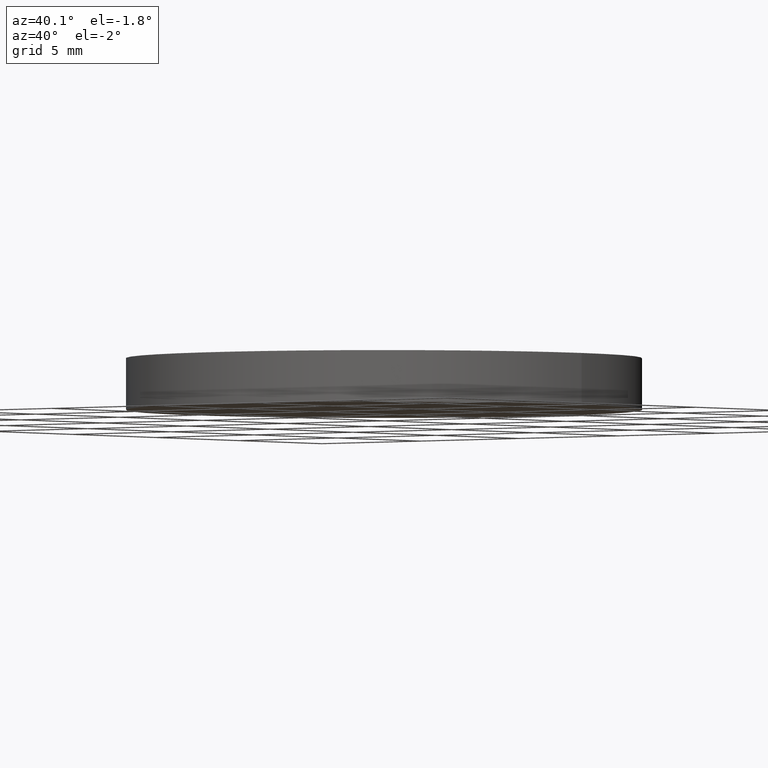
[diagram: clean part render]
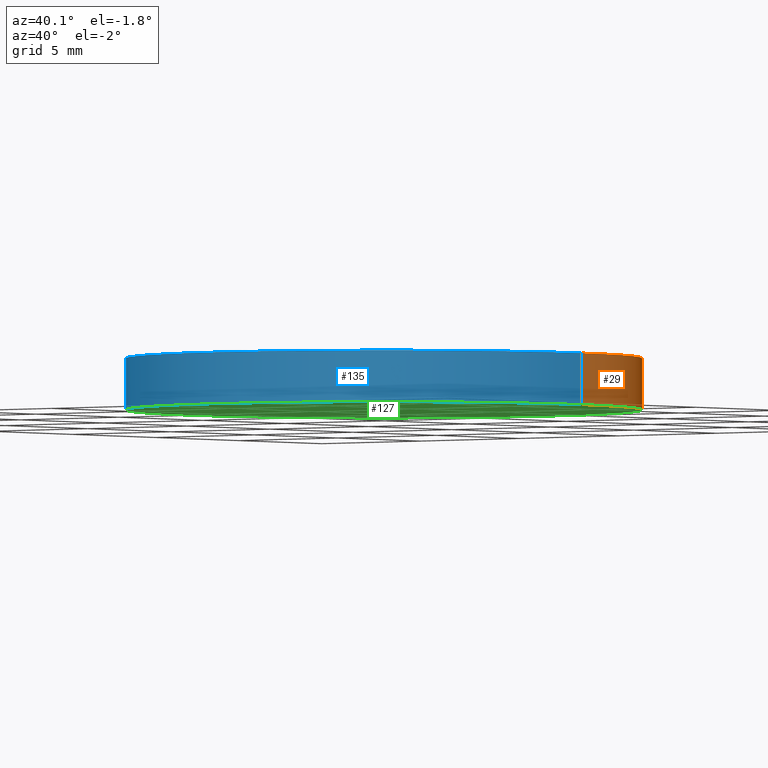
[diagram: same view with three faces highlighted in distinct colors, each labeled with its STEP entity id]
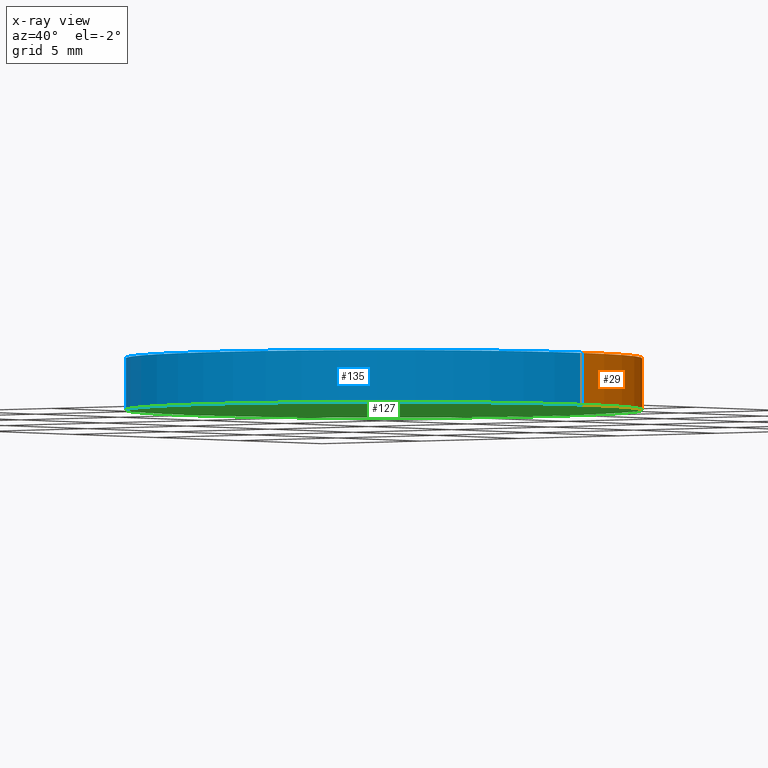
[diagram: x-ray of the same camera — body ghosted, the three highlighted faces saturated]
A machine part, auxiliary view with three faces highlighted in distinct colors.
The next image is the same camera in x-ray (body ghosted, the three faces saturated) — at least one of them is partly hidden behind the body in this view.
Their STEP definitions:

[orange] entity #29 — the highlighted cylindrical surface (partial cylindrical patch) has radius 10 mm, axis along (-0, -0, -1).
#1 = DIRECTION ( 'NONE',  ( 1.000000000000000000, 0.0000000000000000000, 0.0000000000000000000 ) ) ;
#2 = ORIENTED_EDGE ( 'NONE', *, *, #134, .T. ) ;
#3 = DIRECTION ( 'NONE',  ( 0.0000000000000000000, 0.0000000000000000000, 1.000000000000000000 ) ) ;
#5 = CARTESIAN_POINT ( 'NONE',  ( 0.0000000000000000000, 0.0000000000000000000, 2.000000000000000000 ) ) ;
#8 = CARTESIAN_POINT ( 'NONE',  ( 10.00000000000000000, 1.224646799147353300E-015, 0.0000000000000000000 ) ) ;
#9 = CYLINDRICAL_SURFACE ( 'NONE', #99, 10.00000000000000000 ) ;
#11 = LINE ( 'NONE', #81, #19 ) ;
#12 = ORIENTED_EDGE ( 'NONE', *, *, #51, .T. ) ;
#13 = DIRECTION ( 'NONE',  ( -1.000000000000000000, 0.0000000000000000000, 0.0000000000000000000 ) ) ;
#15 = AXIS2_PLACEMENT_3D ( 'NONE', #33, #39, #40 ) ;
#17 = VERTEX_POINT ( 'NONE', #77 ) ;
#19 = VECTOR ( 'NONE', #122, 1000.000000000000000 ) ;
#21 = CARTESIAN_POINT ( 'NONE',  ( -10.00000000000000000, 0.0000000000000000000, 2.000000000000000000 ) ) ;
#28 = CARTESIAN_POINT ( 'NONE',  ( 10.00000000000000000, 1.224646799147353300E-015, 2.000000000000000000 ) ) ;
#29 = ADVANCED_FACE ( 'NONE', ( #117 ), #9, .T. ) ;
#33 = CARTESIAN_POINT ( 'NONE',  ( 0.0000000000000000000, 0.0000000000000000000, 0.0000000000000000000 ) ) ;
#38 = VECTOR ( 'NONE', #74, 1000.000000000000000 ) ;
#39 = DIRECTION ( 'NONE',  ( 0.0000000000000000000, 0.0000000000000000000, 1.000000000000000000 ) ) ;
#40 = DIRECTION ( 'NONE',  ( 1.000000000000000000, 0.0000000000000000000, 0.0000000000000000000 ) ) ;
#41 = ORIENTED_EDGE ( 'NONE', *, *, #101, .F. ) ;
#42 = EDGE_CURVE ( 'NONE', #102, #17, #11, .T. ) ;
#46 = VERTEX_POINT ( 'NONE', #8 ) ;
#49 = CIRCLE ( 'NONE', #15, 10.00000000000000000 ) ;
#51 = EDGE_CURVE ( 'NONE', #46, #17, #49, .T. ) ;
#64 = EDGE_LOOP ( 'NONE', ( #41, #2, #12, #133 ) ) ;
#72 = CARTESIAN_POINT ( 'NONE',  ( 10.00000000000000000, 1.224646799147353300E-015, 2.000000000000000000 ) ) ;
#74 = DIRECTION ( 'NONE',  ( -0.0000000000000000000, -0.0000000000000000000, -1.000000000000000000 ) ) ;
#77 = CARTESIAN_POINT ( 'NONE',  ( -10.00000000000000000, 0.0000000000000000000, 0.0000000000000000000 ) ) ;
#80 = DIRECTION ( 'NONE',  ( -0.0000000000000000000, -0.0000000000000000000, -1.000000000000000000 ) ) ;
#81 = CARTESIAN_POINT ( 'NONE',  ( -10.00000000000000000, 0.0000000000000000000, 2.000000000000000000 ) ) ;
#83 = CIRCLE ( 'NONE', #114, 10.00000000000000000 ) ;
#96 = LINE ( 'NONE', #72, #38 ) ;
#98 = CARTESIAN_POINT ( 'NONE',  ( 0.0000000000000000000, 0.0000000000000000000, 2.000000000000000000 ) ) ;
#99 = AXIS2_PLACEMENT_3D ( 'NONE', #98, #80, #13 ) ;
#101 = EDGE_CURVE ( 'NONE', #109, #102, #83, .T. ) ;
#102 = VERTEX_POINT ( 'NONE', #21 ) ;
#109 = VERTEX_POINT ( 'NONE', #28 ) ;
#114 = AXIS2_PLACEMENT_3D ( 'NONE', #5, #3, #1 ) ;
#117 = FACE_OUTER_BOUND ( 'NONE', #64, .T. ) ;
#122 = DIRECTION ( 'NONE',  ( -0.0000000000000000000, -0.0000000000000000000, -1.000000000000000000 ) ) ;
#133 = ORIENTED_EDGE ( 'NONE', *, *, #42, .F. ) ;
#134 = EDGE_CURVE ( 'NONE', #109, #46, #96, .T. ) ;

[blue] entity #135 — the highlighted cylindrical surface (partial cylindrical patch) has radius 10 mm, axis along (-0, -0, -1).
#7 = CIRCLE ( 'NONE', #31, 10.00000000000000000 ) ;
#8 = CARTESIAN_POINT ( 'NONE',  ( 10.00000000000000000, 1.224646799147353300E-015, 0.0000000000000000000 ) ) ;
#11 = LINE ( 'NONE', #81, #19 ) ;
#17 = VERTEX_POINT ( 'NONE', #77 ) ;
#19 = VECTOR ( 'NONE', #122, 1000.000000000000000 ) ;
#21 = CARTESIAN_POINT ( 'NONE',  ( -10.00000000000000000, 0.0000000000000000000, 2.000000000000000000 ) ) ;
#24 = CIRCLE ( 'NONE', #131, 10.00000000000000000 ) ;
#25 = DIRECTION ( 'NONE',  ( 0.0000000000000000000, 0.0000000000000000000, 1.000000000000000000 ) ) ;
#27 = DIRECTION ( 'NONE',  ( 1.000000000000000000, 0.0000000000000000000, 0.0000000000000000000 ) ) ;
#28 = CARTESIAN_POINT ( 'NONE',  ( 10.00000000000000000, 1.224646799147353300E-015, 2.000000000000000000 ) ) ;
#31 = AXIS2_PLACEMENT_3D ( 'NONE', #45, #25, #27 ) ;
#36 = AXIS2_PLACEMENT_3D ( 'NONE', #87, #60, #93 ) ;
#38 = VECTOR ( 'NONE', #74, 1000.000000000000000 ) ;
#42 = EDGE_CURVE ( 'NONE', #102, #17, #11, .T. ) ;
#44 = EDGE_CURVE ( 'NONE', #102, #109, #7, .T. ) ;
#45 = CARTESIAN_POINT ( 'NONE',  ( 0.0000000000000000000, 0.0000000000000000000, 2.000000000000000000 ) ) ;
#46 = VERTEX_POINT ( 'NONE', #8 ) ;
#48 = CARTESIAN_POINT ( 'NONE',  ( 0.0000000000000000000, 0.0000000000000000000, 0.0000000000000000000 ) ) ;
#60 = DIRECTION ( 'NONE',  ( -0.0000000000000000000, -0.0000000000000000000, -1.000000000000000000 ) ) ;
#66 = FACE_OUTER_BOUND ( 'NONE', #138, .T. ) ;
#68 = ORIENTED_EDGE ( 'NONE', *, *, #42, .T. ) ;
#72 = CARTESIAN_POINT ( 'NONE',  ( 10.00000000000000000, 1.224646799147353300E-015, 2.000000000000000000 ) ) ;
#74 = DIRECTION ( 'NONE',  ( -0.0000000000000000000, -0.0000000000000000000, -1.000000000000000000 ) ) ;
#77 = CARTESIAN_POINT ( 'NONE',  ( -10.00000000000000000, 0.0000000000000000000, 0.0000000000000000000 ) ) ;
#81 = CARTESIAN_POINT ( 'NONE',  ( -10.00000000000000000, 0.0000000000000000000, 2.000000000000000000 ) ) ;
#86 = CYLINDRICAL_SURFACE ( 'NONE', #36, 10.00000000000000000 ) ;
#87 = CARTESIAN_POINT ( 'NONE',  ( 0.0000000000000000000, 0.0000000000000000000, 2.000000000000000000 ) ) ;
#93 = DIRECTION ( 'NONE',  ( -1.000000000000000000, 0.0000000000000000000, 0.0000000000000000000 ) ) ;
#96 = LINE ( 'NONE', #72, #38 ) ;
#102 = VERTEX_POINT ( 'NONE', #21 ) ;
#109 = VERTEX_POINT ( 'NONE', #28 ) ;
#111 = DIRECTION ( 'NONE',  ( 0.0000000000000000000, 0.0000000000000000000, 1.000000000000000000 ) ) ;
#113 = DIRECTION ( 'NONE',  ( 1.000000000000000000, 0.0000000000000000000, 0.0000000000000000000 ) ) ;
#115 = ORIENTED_EDGE ( 'NONE', *, *, #123, .T. ) ;
#122 = DIRECTION ( 'NONE',  ( -0.0000000000000000000, -0.0000000000000000000, -1.000000000000000000 ) ) ;
#123 = EDGE_CURVE ( 'NONE', #17, #46, #24, .T. ) ;
#128 = ORIENTED_EDGE ( 'NONE', *, *, #44, .F. ) ;
#130 = ORIENTED_EDGE ( 'NONE', *, *, #134, .F. ) ;
#131 = AXIS2_PLACEMENT_3D ( 'NONE', #48, #111, #113 ) ;
#134 = EDGE_CURVE ( 'NONE', #109, #46, #96, .T. ) ;
#135 = ADVANCED_FACE ( 'NONE', ( #66 ), #86, .T. ) ;
#138 = EDGE_LOOP ( 'NONE', ( #130, #128, #68, #115 ) ) ;

[green] entity #127 — the highlighted planar face has unit normal (0, 0, 1).
#8 = CARTESIAN_POINT ( 'NONE',  ( 10.00000000000000000, 1.224646799147353300E-015, 0.0000000000000000000 ) ) ;
#15 = AXIS2_PLACEMENT_3D ( 'NONE', #33, #39, #40 ) ;
#17 = VERTEX_POINT ( 'NONE', #77 ) ;
#18 = AXIS2_PLACEMENT_3D ( 'NONE', #63, #106, #124 ) ;
#24 = CIRCLE ( 'NONE', #131, 10.00000000000000000 ) ;
#33 = CARTESIAN_POINT ( 'NONE',  ( 0.0000000000000000000, 0.0000000000000000000, 0.0000000000000000000 ) ) ;
#35 = ORIENTED_EDGE ( 'NONE', *, *, #51, .F. ) ;
#39 = DIRECTION ( 'NONE',  ( 0.0000000000000000000, 0.0000000000000000000, 1.000000000000000000 ) ) ;
#40 = DIRECTION ( 'NONE',  ( 1.000000000000000000, 0.0000000000000000000, 0.0000000000000000000 ) ) ;
#46 = VERTEX_POINT ( 'NONE', #8 ) ;
#48 = CARTESIAN_POINT ( 'NONE',  ( 0.0000000000000000000, 0.0000000000000000000, 0.0000000000000000000 ) ) ;
#49 = CIRCLE ( 'NONE', #15, 10.00000000000000000 ) ;
#51 = EDGE_CURVE ( 'NONE', #46, #17, #49, .T. ) ;
#53 = FACE_OUTER_BOUND ( 'NONE', #90, .T. ) ;
#56 = PLANE ( 'NONE',  #18 ) ;
#59 = ORIENTED_EDGE ( 'NONE', *, *, #123, .F. ) ;
#63 = CARTESIAN_POINT ( 'NONE',  ( 0.0000000000000000000, 0.0000000000000000000, 0.0000000000000000000 ) ) ;
#77 = CARTESIAN_POINT ( 'NONE',  ( -10.00000000000000000, 0.0000000000000000000, 0.0000000000000000000 ) ) ;
#90 = EDGE_LOOP ( 'NONE', ( #59, #35 ) ) ;
#106 = DIRECTION ( 'NONE',  ( 0.0000000000000000000, 0.0000000000000000000, 1.000000000000000000 ) ) ;
#111 = DIRECTION ( 'NONE',  ( 0.0000000000000000000, 0.0000000000000000000, 1.000000000000000000 ) ) ;
#113 = DIRECTION ( 'NONE',  ( 1.000000000000000000, 0.0000000000000000000, 0.0000000000000000000 ) ) ;
#123 = EDGE_CURVE ( 'NONE', #17, #46, #24, .T. ) ;
#124 = DIRECTION ( 'NONE',  ( 1.000000000000000000, 0.0000000000000000000, -0.0000000000000000000 ) ) ;
#127 = ADVANCED_FACE ( 'NONE', ( #53 ), #56, .F. ) ;
#131 = AXIS2_PLACEMENT_3D ( 'NONE', #48, #111, #113 ) ;